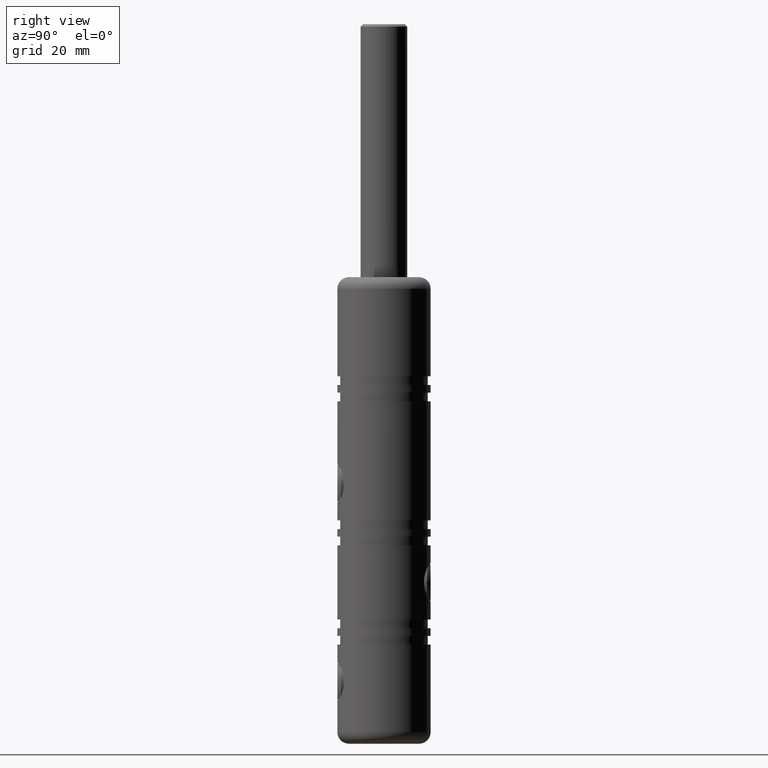
[diagram: clean part render]
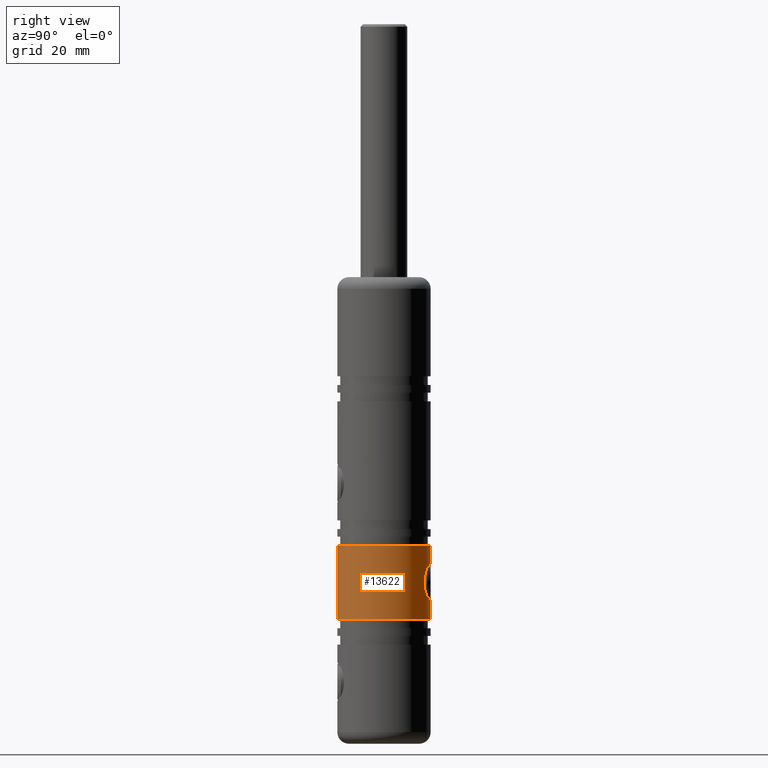
[diagram: same view with one face highlighted and labeled with its STEP entity id]
A machine part, right view. The second image highlights one B-rep face of the part: STEP entity #13622.
In plain terms, the highlighted cylindrical surface (partial cylindrical patch) has radius 8 mm, axis along (0, 0, 1).
Its self-contained STEP definition (entity closure, byte-faithful):
#76 = CARTESIAN_POINT ( 'NONE',  ( 0.0000000000000000000, 7.999999999999988500, -8.950000000000015300 ) ) ;
#341 = LINE ( 'NONE', #573, #11915 ) ;
#538 = CARTESIAN_POINT ( 'NONE',  ( 9.797087487296591500E-016, 7.999999999999986700, -15.75000000000001400 ) ) ;
#573 = CARTESIAN_POINT ( 'NONE',  ( 0.0000000000000000000, -7.999999999999989300, 40.00000000000000000 ) ) ;
#811 = DIRECTION ( 'NONE',  ( 0.0000000000000000000, -1.000000000000000000, 0.0000000000000000000 ) ) ;
#925 = DIRECTION ( 'NONE',  ( -0.0000000000000000000, 5.922595424346115800E-017, 1.000000000000000000 ) ) ;
#952 = CARTESIAN_POINT ( 'NONE',  ( 1.104852776315201000, 7.926088032660501900, -15.57321328937218400 ) ) ;
#1018 = CARTESIAN_POINT ( 'NONE',  ( 2.946162588092070800, 7.438906165836132600, -10.63867449749691500 ) ) ;
#1080 = CARTESIAN_POINT ( 'NONE',  ( 2.078157764837686100, 7.727642496177007400, -9.650097673295629600 ) ) ;
#1139 = CARTESIAN_POINT ( 'NONE',  ( 3.400071815042919000, 7.241513078002112600, -12.12693307385899300 ) ) ;
#2233 = CARTESIAN_POINT ( 'NONE',  ( 9.797174393178815800E-016, 7.999999999999988500, -6.000000000000013300 ) ) ;
#2333 = ORIENTED_EDGE ( 'NONE', *, *, #7086, .T. ) ;
#2430 = CARTESIAN_POINT ( 'NONE',  ( 3.223330730684855100, 7.322482781856729500, -13.45423036884258700 ) ) ;
#2500 = CARTESIAN_POINT ( 'NONE',  ( 1.713622867567705900, 7.816565416602423400, -9.405223448706529200 ) ) ;
#2506 = VECTOR ( 'NONE', #3982, 1000.000000000000000 ) ;
#2550 = CARTESIAN_POINT ( 'NONE',  ( 0.0000000000000000000, -7.999999999999994700, -6.000000000000011500 ) ) ;
#2637 = CARTESIAN_POINT ( 'NONE',  ( 9.797174393178813800E-016, 7.999999999999989300, 40.00000000000000000 ) ) ;
#3191 = AXIS2_PLACEMENT_3D ( 'NONE', #17101, #925, #8934 ) ;
#3293 = DIRECTION ( 'NONE',  ( -0.0000000000000000000, 5.922595424346115800E-017, 1.000000000000000000 ) ) ;
#3437 = CIRCLE ( 'NONE', #10876, 7.999999999999989300 ) ;
#3614 = CARTESIAN_POINT ( 'NONE',  ( 3.223514654248766000, 7.322402065263643700, -11.24628405469714700 ) ) ;
#3735 = CARTESIAN_POINT ( 'NONE',  ( 3.288445093137510400, 7.293045009710979800, -13.24234925060799900 ) ) ;
#3786 = CARTESIAN_POINT ( 'NONE',  ( 1.518421302072227300, 7.857380380396135100, -9.299634141178144000 ) ) ;
#3836 = EDGE_CURVE ( 'NONE', #5909, #12874, #6091, .T. ) ;
#3982 = DIRECTION ( 'NONE',  ( -0.0000000000000000000, 5.922595424346115800E-017, 1.000000000000000000 ) ) ;
#4139 = VERTEX_POINT ( 'NONE', #14397 ) ;
#5026 = CARTESIAN_POINT ( 'NONE',  ( 0.8915802709335743900, 7.953192522683165700, -9.061401426654434500 ) ) ;
#5087 = CARTESIAN_POINT ( 'NONE',  ( 3.052721761500027100, 7.395235532313896500, -10.83668395206536900 ) ) ;
#5493 = VERTEX_POINT ( 'NONE', #2550 ) ;
#5853 = CARTESIAN_POINT ( 'NONE',  ( 0.0000000000000000000, 0.0000000000000000000, 40.00000000000000000 ) ) ;
#5909 = VERTEX_POINT ( 'NONE', #76 ) ;
#6059 = CARTESIAN_POINT ( 'NONE',  ( 0.0000000000000000000, -3.476563514091170300E-015, -18.70000000000001000 ) ) ;
#6091 = LINE ( 'NONE', #2637, #2506 ) ;
#6233 = EDGE_CURVE ( 'NONE', #5493, #12874, #8754, .T. ) ;
#6380 = CARTESIAN_POINT ( 'NONE',  ( 2.562422619992452200, 7.580287893962849700, -14.59561428476810200 ) ) ;
#6708 = CARTESIAN_POINT ( 'NONE',  ( 9.797174393178813800E-016, 7.999999999999989300, 40.00000000000000000 ) ) ;
#7086 = EDGE_CURVE ( 'NONE', #4139, #10971, #10832, .T. ) ;
#7167 = ORIENTED_EDGE ( 'NONE', *, *, #13143, .T. ) ;
#7331 = DIRECTION ( 'NONE',  ( -0.0000000000000000000, 5.922595424346115800E-017, 1.000000000000000000 ) ) ;
#7655 = CARTESIAN_POINT ( 'NONE',  ( 0.4541065086489177700, 7.990117268299888700, -8.973080807165922900 ) ) ;
#7658 = EDGE_CURVE ( 'NONE', #16254, #5493, #341, .T. ) ;
#7721 = CARTESIAN_POINT ( 'NONE',  ( 1.714033983148293600, 7.816483921416010000, -15.29457127986752100 ) ) ;
#7778 = CARTESIAN_POINT ( 'NONE',  ( 0.0000000000000000000, 7.999999999999988500, -8.950000000000015300 ) ) ;
#7782 = ORIENTED_EDGE ( 'NONE', *, *, #13378, .T. ) ;
#7832 = CYLINDRICAL_SURFACE ( 'NONE', #12371, 7.999999999999989300 ) ;
#7974 = CARTESIAN_POINT ( 'NONE',  ( 0.4514605358758959100, 7.990308472804951400, -15.72737397699963300 ) ) ;
#8754 = CIRCLE ( 'NONE', #3191, 7.999999999999991100 ) ;
#8774 = CARTESIAN_POINT ( 'NONE',  ( 0.0000000000000000000, -7.999999999999992900, -18.70000000000001000 ) ) ;
#8934 = DIRECTION ( 'NONE',  ( 0.0000000000000000000, -1.000000000000000000, 1.084202172485505700E-016 ) ) ;
#9027 = CARTESIAN_POINT ( 'NONE',  ( 0.8919228570024746400, 7.953195566763620100, -15.63860840069537500 ) ) ;
#9082 = CARTESIAN_POINT ( 'NONE',  ( 3.399927834273002200, 7.241580678833904500, -12.57525079960556800 ) ) ;
#9144 = CARTESIAN_POINT ( 'NONE',  ( 2.700751742660145300, 7.531476546076894400, -10.27287482430427800 ) ) ;
#10216 = DIRECTION ( 'NONE',  ( -0.0000000000000000000, 5.922595424346115800E-017, 1.000000000000000000 ) ) ;
#10293 = CARTESIAN_POINT ( 'NONE',  ( 3.289087680130576600, 7.292756952013722800, -11.45935711892207300 ) ) ;
#10351 = ORIENTED_EDGE ( 'NONE', *, *, #6233, .F. ) ;
#10361 = CARTESIAN_POINT ( 'NONE',  ( 2.945959785431274000, 7.438979555004716600, -14.06159313322554800 ) ) ;
#10421 = CARTESIAN_POINT ( 'NONE',  ( 2.249526365061703000, 7.678958453456066200, -9.791017648975557800 ) ) ;
#10533 = CARTESIAN_POINT ( 'NONE',  ( 3.377083083094454300, 7.252426248789273400, -12.80328596439560600 ) ) ;
#10832 = LINE ( 'NONE', #6708, #16770 ) ;
#10876 = AXIS2_PLACEMENT_3D ( 'NONE', #6059, #11439, #15481 ) ;
#10971 = VERTEX_POINT ( 'NONE', #538 ) ;
#11439 = DIRECTION ( 'NONE',  ( -0.0000000000000000000, 5.922595424346115800E-017, 1.000000000000000000 ) ) ;
#11715 = CARTESIAN_POINT ( 'NONE',  ( 2.250321709453294800, 7.678725574128295200, -14.90828954642877900 ) ) ;
#11780 = CARTESIAN_POINT ( 'NONE',  ( 2.701287393388046400, 7.531277600479167900, -14.42636136773105100 ) ) ;
#11915 = VECTOR ( 'NONE', #7331, 1000.000000000000000 ) ;
#12371 = AXIS2_PLACEMENT_3D ( 'NONE', #5853, #10216, #811 ) ;
#12691 = FACE_OUTER_BOUND ( 'NONE', #15794, .T. ) ;
#12874 = VERTEX_POINT ( 'NONE', #2233 ) ;
#13031 = CARTESIAN_POINT ( 'NONE',  ( 2.561623328396614800, 7.580557876596308200, -10.10348147940495000 ) ) ;
#13143 = EDGE_CURVE ( 'NONE', #16254, #4139, #3437, .T. ) ;
#13343 = CARTESIAN_POINT ( 'NONE',  ( 9.797087487296591500E-016, 7.999999999999986700, -15.75000000000001400 ) ) ;
#13378 = EDGE_CURVE ( 'NONE', #10971, #5909, #16093, .T. ) ;
#13534 = ORIENTED_EDGE ( 'NONE', *, *, #7658, .F. ) ;
#13622 = ADVANCED_FACE ( 'NONE', ( #12691 ), #7832, .T. ) ;
#13950 = ORIENTED_EDGE ( 'NONE', *, *, #3836, .T. ) ;
#14397 = CARTESIAN_POINT ( 'NONE',  ( 9.797174393178813800E-016, 7.999999999999986700, -18.70000000000001000 ) ) ;
#14457 = CARTESIAN_POINT ( 'NONE',  ( 1.516685106667518400, 7.857686519964282500, -15.40114238496498100 ) ) ;
#14645 = CARTESIAN_POINT ( 'NONE',  ( 3.378187306158739300, 7.251913695931523100, -11.90368953215333500 ) ) ;
#14720 = CARTESIAN_POINT ( 'NONE',  ( 0.2239787353389027800, 7.999999999999984900, -15.75000000000001100 ) ) ;
#15481 = DIRECTION ( 'NONE',  ( 0.0000000000000000000, -1.000000000000000000, 0.0000000000000000000 ) ) ;
#15759 = CARTESIAN_POINT ( 'NONE',  ( 2.079259359964982700, 7.727354909873117400, -15.04909114918444900 ) ) ;
#15794 = EDGE_LOOP ( 'NONE', ( #7167, #2333, #7782, #13950, #10351, #13534 ) ) ;
#15828 = CARTESIAN_POINT ( 'NONE',  ( 1.104433361339426800, 7.926175410825909000, -9.126560521180330500 ) ) ;
#15952 = CARTESIAN_POINT ( 'NONE',  ( 0.2273669206469684000, 7.999999999999991100, -8.950000000000017100 ) ) ;
#16093 = B_SPLINE_CURVE_WITH_KNOTS ( 'NONE', 3,
 ( #13343, #14720, #7974, #9027, #952, #14457, #7721, #15759, #11715, #6380, #11780, #10361, #17191, #2430, #3735, #10533, #9082, #1139, #14645, #10293, #3614, #5087, #1018, #9144, #13031, #10421, #1080, #2500, #3786, #15828, #5026, #7655, #15952, #7778 ),
 .UNSPECIFIED., .F., .F.,
 ( 4, 2, 2, 2, 2, 2, 2, 2, 2, 2, 2, 2, 2, 2, 2, 2, 4 ),
 ( 0.01075952590451986400, 0.01143140143656543700, 0.01210327696861101000, 0.01277515250065658400, 0.01344702803270216000, 0.01411890356474773500, 0.01479077909679331000, 0.01546265462883888700, 0.01613453016088446000, 0.01680640569293003600, 0.01747828122497560900, 0.01815015675702118600, 0.01882203228906675900, 0.01949390782111233600, 0.02016578335315791200, 0.02083765888520348500, 0.02150953441724906200 ),
 .UNSPECIFIED. ) ;
#16254 = VERTEX_POINT ( 'NONE', #8774 ) ;
#16770 = VECTOR ( 'NONE', #3293, 1000.000000000000000 ) ;
#17101 = CARTESIAN_POINT ( 'NONE',  ( 0.0000000000000000000, -2.724393895199214000E-015, -6.000000000000012400 ) ) ;
#17191 = CARTESIAN_POINT ( 'NONE',  ( 3.052572273714785600, 7.395296992258887600, -13.86360107710035200 ) ) ;